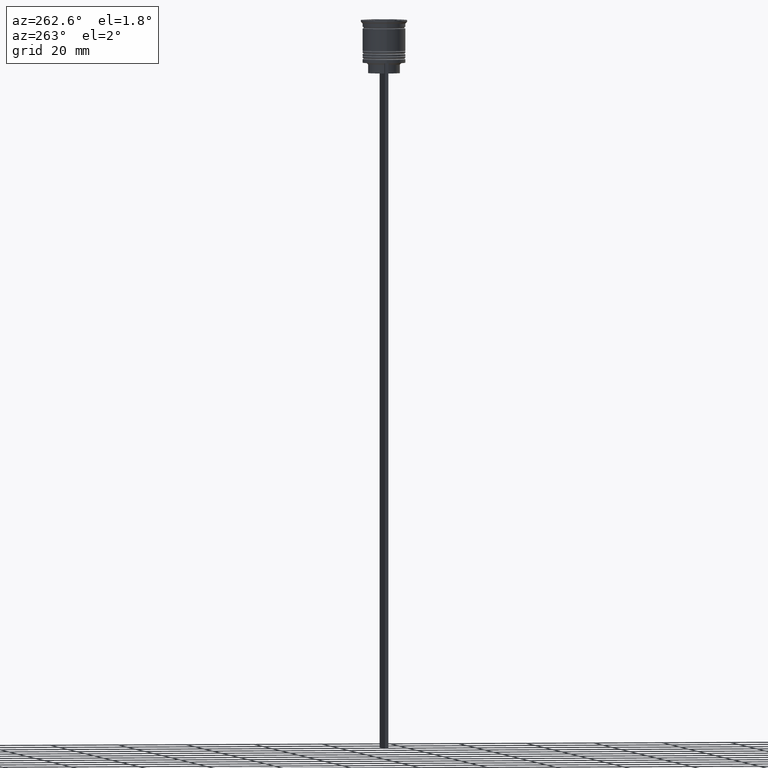
[diagram: clean part render]
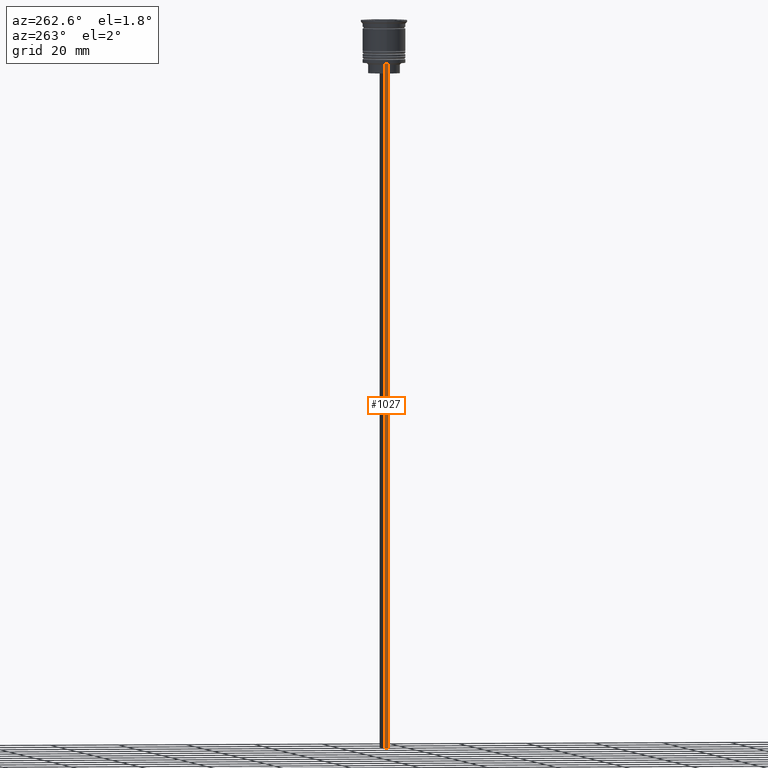
[diagram: same view with one face highlighted and labeled with its STEP entity id]
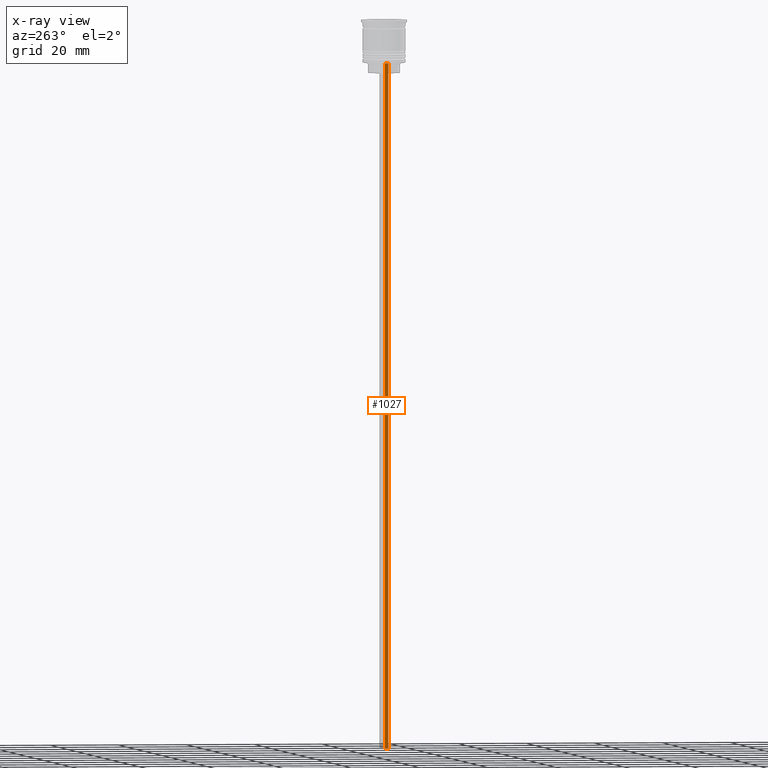
[diagram: x-ray of the same camera — body ghosted, the highlighted face saturated]
A machine part, auxiliary view. The second image highlights one B-rep face of the part: STEP entity #1027.
The next image is the same camera in x-ray: the body ghosted, the highlighted face saturated — about 0% of this face is hidden behind the body in this view.
In plain terms, the highlighted planar face has unit normal (-1, 0, 0).
Its self-contained STEP definition (entity closure, byte-faithful):
#59 = ORIENTED_EDGE ( 'NONE', *, *, #1738, .F. ) ;
#78 = CARTESIAN_POINT ( 'NONE',  ( -5.999999999999983125, -0.5000000000000017764, -212.5000000000000284 ) ) ;
#139 = VERTEX_POINT ( 'NONE', #321 ) ;
#280 = CARTESIAN_POINT ( 'NONE',  ( -5.999999999999983125, 0.4999999999999982792, -212.5000000000000284 ) ) ;
#321 = CARTESIAN_POINT ( 'NONE',  ( -5.999999999999983125, -0.5000000000000017764, -212.5000000000000284 ) ) ;
#392 = CARTESIAN_POINT ( 'NONE',  ( -5.999999999999983125, 0.4999999999999982792, -0.4584054212077061097 ) ) ;
#429 = AXIS2_PLACEMENT_3D ( 'NONE', #2141, #1015, #1562 ) ;
#537 = VECTOR ( 'NONE', #1863, 1000.000000000000000 ) ;
#614 = DIRECTION ( 'NONE',  ( 0.000000000000000000, -1.000000000000000000, 0.000000000000000000 ) ) ;
#664 = ORIENTED_EDGE ( 'NONE', *, *, #778, .F. ) ;
#778 = EDGE_CURVE ( 'NONE', #1555, #139, #1128, .T. ) ;
#795 = CARTESIAN_POINT ( 'NONE',  ( -5.999999999999983125, -0.5000000000000017764, -12.50000000000000000 ) ) ;
#1015 = DIRECTION ( 'NONE',  ( -1.000000000000000000, 0.000000000000000000, 0.000000000000000000 ) ) ;
#1022 = PLANE ( 'NONE',  #429 ) ;
#1027 = ADVANCED_FACE ( 'NONE', ( #1767 ), #1022, .T. ) ;
#1128 = LINE ( 'NONE', #1254, #1570 ) ;
#1153 = LINE ( 'NONE', #392, #537 ) ;
#1174 = VERTEX_POINT ( 'NONE', #1990 ) ;
#1186 = VECTOR ( 'NONE', #2248, 1000.000000000000000 ) ;
#1221 = VECTOR ( 'NONE', #614, 1000.000000000000000 ) ;
#1254 = CARTESIAN_POINT ( 'NONE',  ( -5.999999999999983125, -0.5000000000000017764, -0.4584054212077061097 ) ) ;
#1290 = EDGE_CURVE ( 'NONE', #1174, #2104, #1153, .T. ) ;
#1555 = VERTEX_POINT ( 'NONE', #1957 ) ;
#1562 = DIRECTION ( 'NONE',  ( 0.000000000000000000, 0.000000000000000000, 1.000000000000000000 ) ) ;
#1570 = VECTOR ( 'NONE', #1817, 1000.000000000000000 ) ;
#1732 = EDGE_CURVE ( 'NONE', #139, #2104, #1745, .T. ) ;
#1737 = LINE ( 'NONE', #795, #1221 ) ;
#1738 = EDGE_CURVE ( 'NONE', #1174, #1555, #1737, .T. ) ;
#1745 = LINE ( 'NONE', #78, #1186 ) ;
#1767 = FACE_OUTER_BOUND ( 'NONE', #2231, .T. ) ;
#1817 = DIRECTION ( 'NONE',  ( 0.000000000000000000, 0.000000000000000000, -1.000000000000000000 ) ) ;
#1863 = DIRECTION ( 'NONE',  ( 0.000000000000000000, 0.000000000000000000, -1.000000000000000000 ) ) ;
#1957 = CARTESIAN_POINT ( 'NONE',  ( -5.999999999999983125, -0.5000000000000017764, -12.50000000000000000 ) ) ;
#1990 = CARTESIAN_POINT ( 'NONE',  ( -5.999999999999983125, 0.4999999999999985012, -12.50000000000000000 ) ) ;
#2083 = ORIENTED_EDGE ( 'NONE', *, *, #1290, .T. ) ;
#2104 = VERTEX_POINT ( 'NONE', #280 ) ;
#2141 = CARTESIAN_POINT ( 'NONE',  ( -5.999999999999983125, -0.5000000000000017764, -0.4584054212077061097 ) ) ;
#2231 = EDGE_LOOP ( 'NONE', ( #59, #2083, #2311, #664 ) ) ;
#2248 = DIRECTION ( 'NONE',  ( 0.000000000000000000, 1.000000000000000000, 0.000000000000000000 ) ) ;
#2311 = ORIENTED_EDGE ( 'NONE', *, *, #1732, .F. ) ;